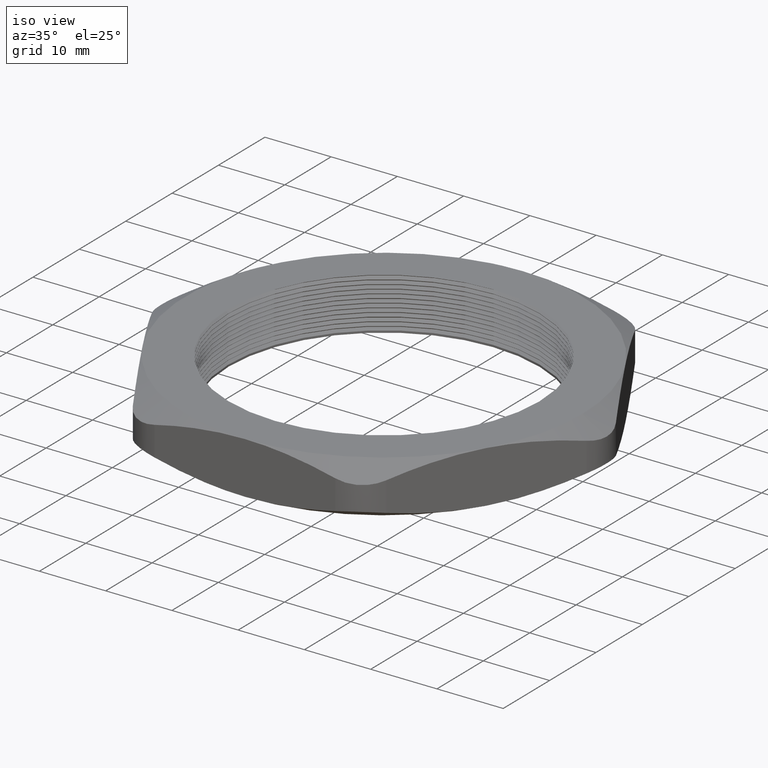
[diagram: clean part render]
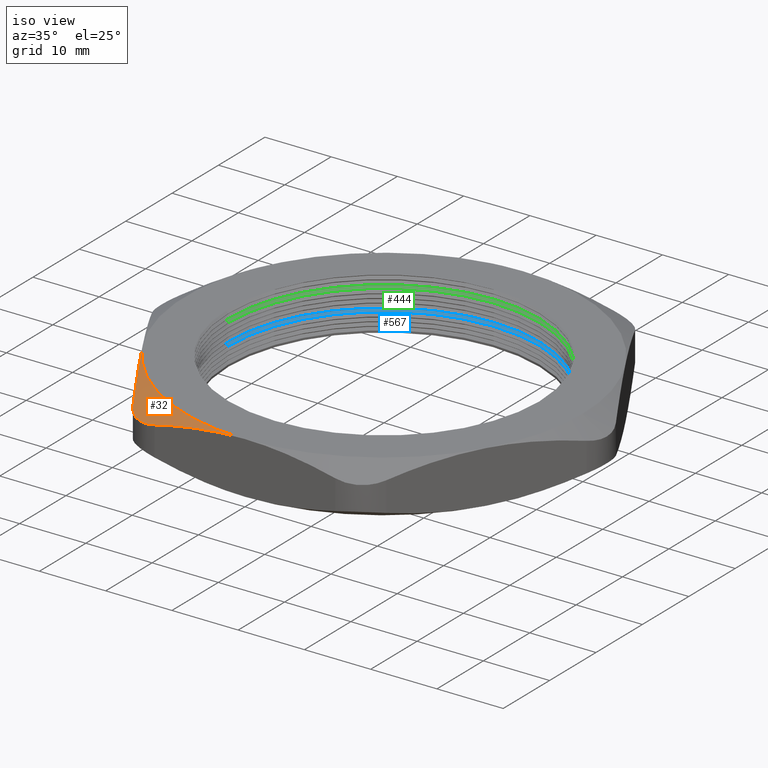
[diagram: same view with three faces highlighted in distinct colors, each labeled with its STEP entity id]
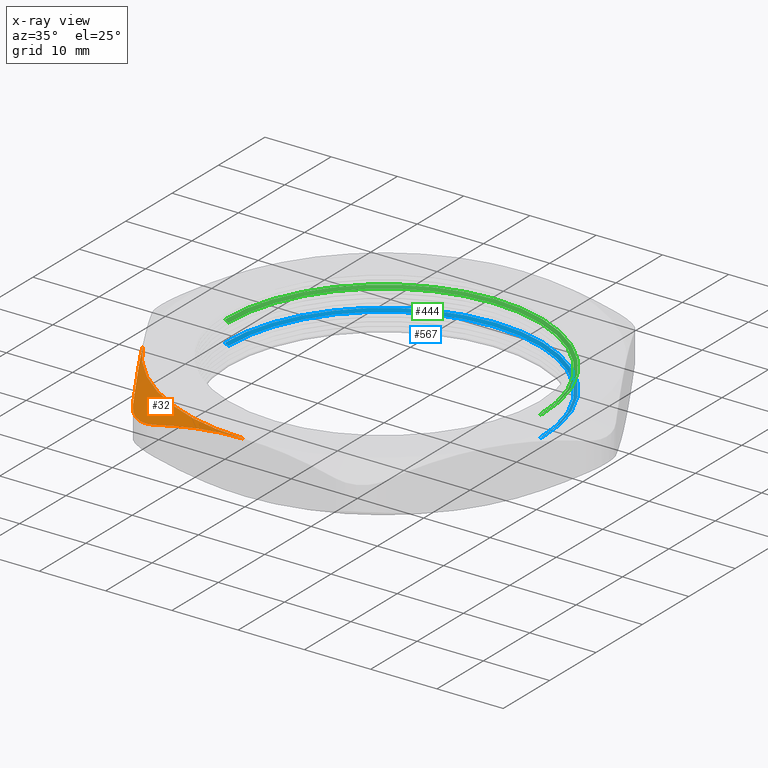
[diagram: x-ray of the same camera — body ghosted, the three highlighted faces saturated]
A machine part, iso view with three faces highlighted in distinct colors.
The next image is the same camera in x-ray (body ghosted, the three faces saturated) — at least one of them is partly hidden behind the body in this view.
Their STEP definitions:

[orange] entity #32 — the highlighted conical surface has half-angle 60 deg.
#25 = ORIENTED_EDGE ( 'NONE', *, *, #244, .T. ) ;
#26 = EDGE_CURVE ( 'NONE', #126, #222, #670, .T. ) ;
#27 = ORIENTED_EDGE ( 'NONE', *, *, #26, .T. ) ;
#28 = ORIENTED_EDGE ( 'NONE', *, *, #36, .F. ) ;
#29 = ORIENTED_EDGE ( 'NONE', *, *, #127, .T. ) ;
#30 = EDGE_LOOP ( 'NONE', ( #29, #27, #25, #28 ) ) ;
#32 = ADVANCED_FACE ( 'NONE', ( #672 ), #671, .T. ) ;
#36 = EDGE_CURVE ( 'NONE', #146, #242, #711, .T. ) ;
#126 = VERTEX_POINT ( 'NONE', #876 ) ;
#127 = EDGE_CURVE ( 'NONE', #146, #126, #930, .T. ) ;
#146 = VERTEX_POINT ( 'NONE', #935 ) ;
#222 = VERTEX_POINT ( 'NONE', #1120 ) ;
#242 = VERTEX_POINT ( 'NONE', #1185 ) ;
#244 = EDGE_CURVE ( 'NONE', #222, #242, #1183, .T. ) ;
#652 = DIRECTION ( 'NONE',  ( 1.000000000000000000, 0.0000000000000000000, 0.0000000000000000000 ) ) ;
#653 = DIRECTION ( 'NONE',  ( 0.0000000000000000000, 0.0000000000000000000, -1.000000000000000000 ) ) ;
#654 = CARTESIAN_POINT ( 'NONE',  ( 0.0000000000000000000, 0.0000000000000000000, 0.3100000000000000000 ) ) ;
#655 = CARTESIAN_POINT ( 'NONE',  ( -0.5369357503463528800, -1.179999999999999700, 0.2427859541343046200 ) ) ;
#656 = CARTESIAN_POINT ( 'NONE',  ( -0.5585386968758971900, -1.180000000000000200, 0.2376202493319562500 ) ) ;
#657 = CARTESIAN_POINT ( 'NONE',  ( -0.5803717184231769200, -1.177156764165109100, 0.2336283984944731200 ) ) ;
#658 = CARTESIAN_POINT ( 'NONE',  ( -0.6118967407510961200, -1.168744920922675200, 0.2296370671020658300 ) ) ;
#659 = CARTESIAN_POINT ( 'NONE',  ( -0.6222508287803761900, -1.165250896099422800, 0.2286275982255476800 ) ) ;
#660 = CARTESIAN_POINT ( 'NONE',  ( -0.6426363754475598000, -1.156823774276416900, 0.2272701564282433900 ) ) ;
#661 = CARTESIAN_POINT ( 'NONE',  ( -0.6526144673638910600, -1.151897965371903300, 0.2269317070438216000 ) ) ;
#662 = CARTESIAN_POINT ( 'NONE',  ( -0.6716009541221936700, -1.140915991567793300, 0.2269398675414505100 ) ) ;
#663 = CARTESIAN_POINT ( 'NONE',  ( -0.6806907329805727000, -1.134828307281984000, 0.2272802097087080500 ) ) ;
#664 = CARTESIAN_POINT ( 'NONE',  ( -0.6980647301955046300, -1.121461699430824200, 0.2286349243502645300 ) ) ;
#665 = CARTESIAN_POINT ( 'NONE',  ( -0.7064093568846983000, -1.114115284490267300, 0.2296625828566577200 ) ) ;
#666 = CARTESIAN_POINT ( 'NONE',  ( -0.7295674056393848300, -1.090847786939235700, 0.2336981853431918700 ) ) ;
#667 = CARTESIAN_POINT ( 'NONE',  ( -0.7426431885255226900, -1.073704265578844000, 0.2376214738663903200 ) ) ;
#668 = CARTESIAN_POINT ( 'NONE',  ( -0.7534421012924625800, -1.054999999999999500, 0.2427859541343046200 ) ) ;
#669 = AXIS2_PLACEMENT_3D ( 'NONE', #654, #653, #652 ) ;
#670 = B_SPLINE_CURVE_WITH_KNOTS ( 'NONE', 3,
 ( #668, #667, #666, #665, #664, #663, #662, #661, #660, #659, #658, #657, #656, #655 ),
 .UNSPECIFIED., .F., .F.,
 ( 4, 2, 2, 2, 2, 2, 4 ),
 ( 0.0000000000000000000, 0.001669271586080336600, 0.002503907379120501100, 0.003338543172160665700, 0.004173178965200829500, 0.005007814758240994500, 0.006677086344321325400 ),
 .UNSPECIFIED. ) ;
#671 = CONICAL_SURFACE ( 'NONE', #669, 1.179999999999999900, 1.047197551196600100 ) ;
#672 = FACE_OUTER_BOUND ( 'NONE', #30, .T. ) ;
#708 = DIRECTION ( 'NONE',  ( 1.000000000000000000, 0.0000000000000000000, 0.0000000000000000000 ) ) ;
#709 = DIRECTION ( 'NONE',  ( 0.0000000000000000000, 0.0000000000000000000, 1.000000000000000000 ) ) ;
#710 = AXIS2_PLACEMENT_3D ( 'NONE', #713, #709, #708 ) ;
#711 = CIRCLE ( 'NONE', #710, 1.179999999999999900 ) ;
#713 = CARTESIAN_POINT ( 'NONE',  ( 0.0000000000000000000, 0.0000000000000000000, 0.3100000000000000000 ) ) ;
#876 = CARTESIAN_POINT ( 'NONE',  ( -0.7534421012924625800, -1.054999999999999500, 0.2427859541343046200 ) ) ;
#922 = CARTESIAN_POINT ( 'NONE',  ( -0.7534421012924625800, -1.054999999999999500, 0.2427859541343046200 ) ) ;
#923 = CARTESIAN_POINT ( 'NONE',  ( -0.7973887212075470000, -0.9788822214861552200, 0.2638030191195694900 ) ) ;
#924 = CARTESIAN_POINT ( 'NONE',  ( -0.8416764008185151400, -0.9021737102506264300, 0.2807020580561902000 ) ) ;
#925 = CARTESIAN_POINT ( 'NONE',  ( -0.9087710475143723200, -0.7859623732575180500, 0.2980438790977818500 ) ) ;
#926 = CARTESIAN_POINT ( 'NONE',  ( -0.9312463869647988900, -0.7470339434120216700, 0.3024908025705307400 ) ) ;
#927 = CARTESIAN_POINT ( 'NONE',  ( -0.9764383408460229900, -0.6687591831964321300, 0.3084714449772215600 ) ) ;
#928 = CARTESIAN_POINT ( 'NONE',  ( -0.9992330720533525400, -0.6292775506004606400, 0.3099999999999995000 ) ) ;
#929 = CARTESIAN_POINT ( 'NONE',  ( -1.021909976465638300, -0.5899999999999997500, 0.3100000000000000000 ) ) ;
#930 = B_SPLINE_CURVE_WITH_KNOTS ( 'NONE', 3,
 ( #929, #928, #927, #926, #925, #924, #923, #922 ),
 .UNSPECIFIED., .F., .F.,
 ( 4, 2, 2, 4 ),
 ( 0.01750939737440082200, 0.02093024688783881200, 0.02435109640127680600, 0.03119279542815278600 ),
 .UNSPECIFIED. ) ;
#935 = CARTESIAN_POINT ( 'NONE',  ( -1.021909976465638300, -0.5899999999999997500, 0.3100000000000000000 ) ) ;
#1120 = CARTESIAN_POINT ( 'NONE',  ( -0.5369357503463528800, -1.179999999999999700, 0.2427859541343046200 ) ) ;
#1183 = B_SPLINE_CURVE_WITH_KNOTS ( 'NONE', 3,
 ( #1226, #1225, #1224, #1223, #1222, #1221 ),
 .UNSPECIFIED., .F., .F.,
 ( 4, 2, 4 ),
 ( 0.03544491569854258500, 0.04231837440336419500, 0.04919183310818579800 ),
 .UNSPECIFIED. ) ;
#1185 = CARTESIAN_POINT ( 'NONE',  ( 0.0000000000000000000, -1.179999999999999700, 0.3100000000000000000 ) ) ;
#1221 = CARTESIAN_POINT ( 'NONE',  ( 0.0000000000000000000, -1.179999999999999700, 0.3100000000000000000 ) ) ;
#1222 = CARTESIAN_POINT ( 'NONE',  ( -0.09043671930198105000, -1.179999999999999700, 0.3100000000000001100 ) ) ;
#1223 = CARTESIAN_POINT ( 'NONE',  ( -0.1803601917602105600, -1.179999999999999500, 0.3039296812338860800 ) ) ;
#1224 = CARTESIAN_POINT ( 'NONE',  ( -0.3592866603776253600, -1.179999999999999700, 0.2809023044652065900 ) ) ;
#1225 = CARTESIAN_POINT ( 'NONE',  ( -0.4483414298501926500, -1.179999999999999300, 0.2639706617954512600 ) ) ;
#1226 = CARTESIAN_POINT ( 'NONE',  ( -0.5369357503463528800, -1.179999999999999700, 0.2427859541343046200 ) ) ;

[blue] entity #567 — the highlighted conical surface has half-angle 60 deg.
#177 = EDGE_CURVE ( 'NONE', #2038, #2077, #982, .T. ) ;
#544 = ORIENTED_EDGE ( 'NONE', *, *, #566, .T. ) ;
#566 = EDGE_CURVE ( 'NONE', #2023, #2026, #1765, .T. ) ;
#567 = ADVANCED_FACE ( 'NONE', ( #1761 ), #1760, .F. ) ;
#568 = EDGE_LOOP ( 'NONE', ( #569, #570, #571, #544 ) ) ;
#569 = ORIENTED_EDGE ( 'NONE', *, *, #2025, .F. ) ;
#570 = ORIENTED_EDGE ( 'NONE', *, *, #177, .F. ) ;
#571 = ORIENTED_EDGE ( 'NONE', *, *, #1975, .T. ) ;
#982 = CIRCLE ( 'NONE', #987, 0.9250000000000002700 ) ;
#987 = AXIS2_PLACEMENT_3D ( 'NONE', #1046, #1045, #1044 ) ;
#1044 = DIRECTION ( 'NONE',  ( 1.000000000000000000, 0.0000000000000000000, 0.0000000000000000000 ) ) ;
#1045 = DIRECTION ( 'NONE',  ( 0.0000000000000000000, 0.0000000000000000000, 1.000000000000000000 ) ) ;
#1046 = CARTESIAN_POINT ( 'NONE',  ( 0.0000000000000000000, 0.0000000000000000000, 0.1119059892324149600 ) ) ;
#1755 = DIRECTION ( 'NONE',  ( 1.000000000000000000, 0.0000000000000000000, 0.0000000000000000000 ) ) ;
#1756 = DIRECTION ( 'NONE',  ( 0.0000000000000000000, 0.0000000000000000000, 1.000000000000000000 ) ) ;
#1757 = CARTESIAN_POINT ( 'NONE',  ( 0.0000000000000000000, 0.0000000000000000000, 0.1119059892324149600 ) ) ;
#1758 = AXIS2_PLACEMENT_3D ( 'NONE', #1757, #1756, #1755 ) ;
#1760 = CONICAL_SURFACE ( 'NONE', #1758, 0.9250000000000002700, 1.047197551196593900 ) ;
#1761 = FACE_OUTER_BOUND ( 'NONE', #568, .T. ) ;
#1762 = DIRECTION ( 'NONE',  ( 1.000000000000000000, 0.0000000000000000000, 0.0000000000000000000 ) ) ;
#1763 = DIRECTION ( 'NONE',  ( 0.0000000000000000000, 0.0000000000000000000, 1.000000000000000000 ) ) ;
#1764 = AXIS2_PLACEMENT_3D ( 'NONE', #1770, #1763, #1762 ) ;
#1765 = CIRCLE ( 'NONE', #1764, 0.9450000000000002800 ) ;
#1770 = CARTESIAN_POINT ( 'NONE',  ( 0.0000000000000000000, 0.0000000000000000000, 0.1234529946162076100 ) ) ;
#1975 = EDGE_CURVE ( 'NONE', #2038, #2023, #2151, .T. ) ;
#2023 = VERTEX_POINT ( 'NONE', #2246 ) ;
#2025 = EDGE_CURVE ( 'NONE', #2077, #2026, #2245, .T. ) ;
#2026 = VERTEX_POINT ( 'NONE', #2306 ) ;
#2038 = VERTEX_POINT ( 'NONE', #2289 ) ;
#2077 = VERTEX_POINT ( 'NONE', #2395 ) ;
#2148 = DIRECTION ( 'NONE',  ( 0.8660254037844366000, 0.0000000000000000000, 0.5000000000000033300 ) ) ;
#2149 = VECTOR ( 'NONE', #2148, 39.37007874015748100 ) ;
#2150 = CARTESIAN_POINT ( 'NONE',  ( 0.9250000000000002700, 0.0000000000000000000, 0.1119059892324149600 ) ) ;
#2151 = LINE ( 'NONE', #2150, #2149 ) ;
#2242 = DIRECTION ( 'NONE',  ( -0.8660254037844366000, 1.060575238724904700E-016, 0.5000000000000033300 ) ) ;
#2243 = VECTOR ( 'NONE', #2242, 39.37007874015748100 ) ;
#2244 = CARTESIAN_POINT ( 'NONE',  ( -0.9250000000000002700, 1.132798289211302000E-016, 0.1119059892324149600 ) ) ;
#2245 = LINE ( 'NONE', #2244, #2243 ) ;
#2246 = CARTESIAN_POINT ( 'NONE',  ( 0.9450000000000002800, 1.157291225194249100E-016, 0.1234529946162076100 ) ) ;
#2289 = CARTESIAN_POINT ( 'NONE',  ( 0.9250000000000002700, 1.132798289211302000E-016, 0.1119059892324149600 ) ) ;
#2306 = CARTESIAN_POINT ( 'NONE',  ( -0.9450000000000002800, 0.0000000000000000000, 0.1234529946162076100 ) ) ;
#2395 = CARTESIAN_POINT ( 'NONE',  ( -0.9250000000000002700, 0.0000000000000000000, 0.1119059892324149600 ) ) ;

[green] entity #444 — the highlighted conical surface has half-angle 60 deg.
#193 = EDGE_CURVE ( 'NONE', #2841, #2843, #1073, .T. ) ;
#201 = EDGE_CURVE ( 'NONE', #2843, #2844, #1057, .T. ) ;
#443 = EDGE_CURVE ( 'NONE', #2925, #2844, #1588, .T. ) ;
#444 = ADVANCED_FACE ( 'NONE', ( #1584 ), #1583, .F. ) ;
#445 = EDGE_LOOP ( 'NONE', ( #446, #447, #448, #449 ) ) ;
#446 = ORIENTED_EDGE ( 'NONE', *, *, #201, .F. ) ;
#447 = ORIENTED_EDGE ( 'NONE', *, *, #193, .F. ) ;
#448 = ORIENTED_EDGE ( 'NONE', *, *, #2913, .T. ) ;
#449 = ORIENTED_EDGE ( 'NONE', *, *, #443, .T. ) ;
#1050 = DIRECTION ( 'NONE',  ( -0.8660254037844366000, 1.060575238724904700E-016, 0.5000000000000033300 ) ) ;
#1051 = VECTOR ( 'NONE', #1050, 39.37007874015748100 ) ;
#1052 = CARTESIAN_POINT ( 'NONE',  ( -0.9250000000000002700, 1.132798289211302000E-016, 0.2369059892324149600 ) ) ;
#1057 = LINE ( 'NONE', #1052, #1051 ) ;
#1065 = DIRECTION ( 'NONE',  ( 1.000000000000000000, 0.0000000000000000000, 0.0000000000000000000 ) ) ;
#1066 = DIRECTION ( 'NONE',  ( 0.0000000000000000000, 0.0000000000000000000, 1.000000000000000000 ) ) ;
#1067 = CARTESIAN_POINT ( 'NONE',  ( 0.0000000000000000000, 0.0000000000000000000, 0.2369059892324149600 ) ) ;
#1068 = AXIS2_PLACEMENT_3D ( 'NONE', #1067, #1066, #1065 ) ;
#1073 = CIRCLE ( 'NONE', #1068, 0.9250000000000002700 ) ;
#1578 = DIRECTION ( 'NONE',  ( 1.000000000000000000, 0.0000000000000000000, 0.0000000000000000000 ) ) ;
#1579 = DIRECTION ( 'NONE',  ( 0.0000000000000000000, 0.0000000000000000000, 1.000000000000000000 ) ) ;
#1580 = CARTESIAN_POINT ( 'NONE',  ( 0.0000000000000000000, 0.0000000000000000000, 0.2369059892324149600 ) ) ;
#1581 = AXIS2_PLACEMENT_3D ( 'NONE', #1580, #1579, #1578 ) ;
#1583 = CONICAL_SURFACE ( 'NONE', #1581, 0.9250000000000002700, 1.047197551196593900 ) ;
#1584 = FACE_OUTER_BOUND ( 'NONE', #445, .T. ) ;
#1585 = DIRECTION ( 'NONE',  ( 1.000000000000000000, 0.0000000000000000000, 0.0000000000000000000 ) ) ;
#1586 = DIRECTION ( 'NONE',  ( 0.0000000000000000000, 0.0000000000000000000, 1.000000000000000000 ) ) ;
#1587 = AXIS2_PLACEMENT_3D ( 'NONE', #1593, #1586, #1585 ) ;
#1588 = CIRCLE ( 'NONE', #1587, 0.9450000000000002800 ) ;
#1593 = CARTESIAN_POINT ( 'NONE',  ( 0.0000000000000000000, 0.0000000000000000000, 0.2484529946162076200 ) ) ;
#2510 = CARTESIAN_POINT ( 'NONE',  ( -0.9450000000000002800, 0.0000000000000000000, 0.2484529946162076200 ) ) ;
#2511 = CARTESIAN_POINT ( 'NONE',  ( -0.9250000000000002700, 0.0000000000000000000, 0.2369059892324149600 ) ) ;
#2517 = CARTESIAN_POINT ( 'NONE',  ( 0.9250000000000002700, 1.132798289211302000E-016, 0.2369059892324149600 ) ) ;
#2629 = DIRECTION ( 'NONE',  ( 0.8660254037844366000, 0.0000000000000000000, 0.5000000000000033300 ) ) ;
#2630 = VECTOR ( 'NONE', #2629, 39.37007874015748100 ) ;
#2631 = CARTESIAN_POINT ( 'NONE',  ( 0.9250000000000002700, 0.0000000000000000000, 0.2369059892324149600 ) ) ;
#2632 = LINE ( 'NONE', #2631, #2630 ) ;
#2672 = CARTESIAN_POINT ( 'NONE',  ( 0.9450000000000002800, 1.157291225194249100E-016, 0.2484529946162076200 ) ) ;
#2841 = VERTEX_POINT ( 'NONE', #2517 ) ;
#2843 = VERTEX_POINT ( 'NONE', #2511 ) ;
#2844 = VERTEX_POINT ( 'NONE', #2510 ) ;
#2913 = EDGE_CURVE ( 'NONE', #2841, #2925, #2632, .T. ) ;
#2925 = VERTEX_POINT ( 'NONE', #2672 ) ;